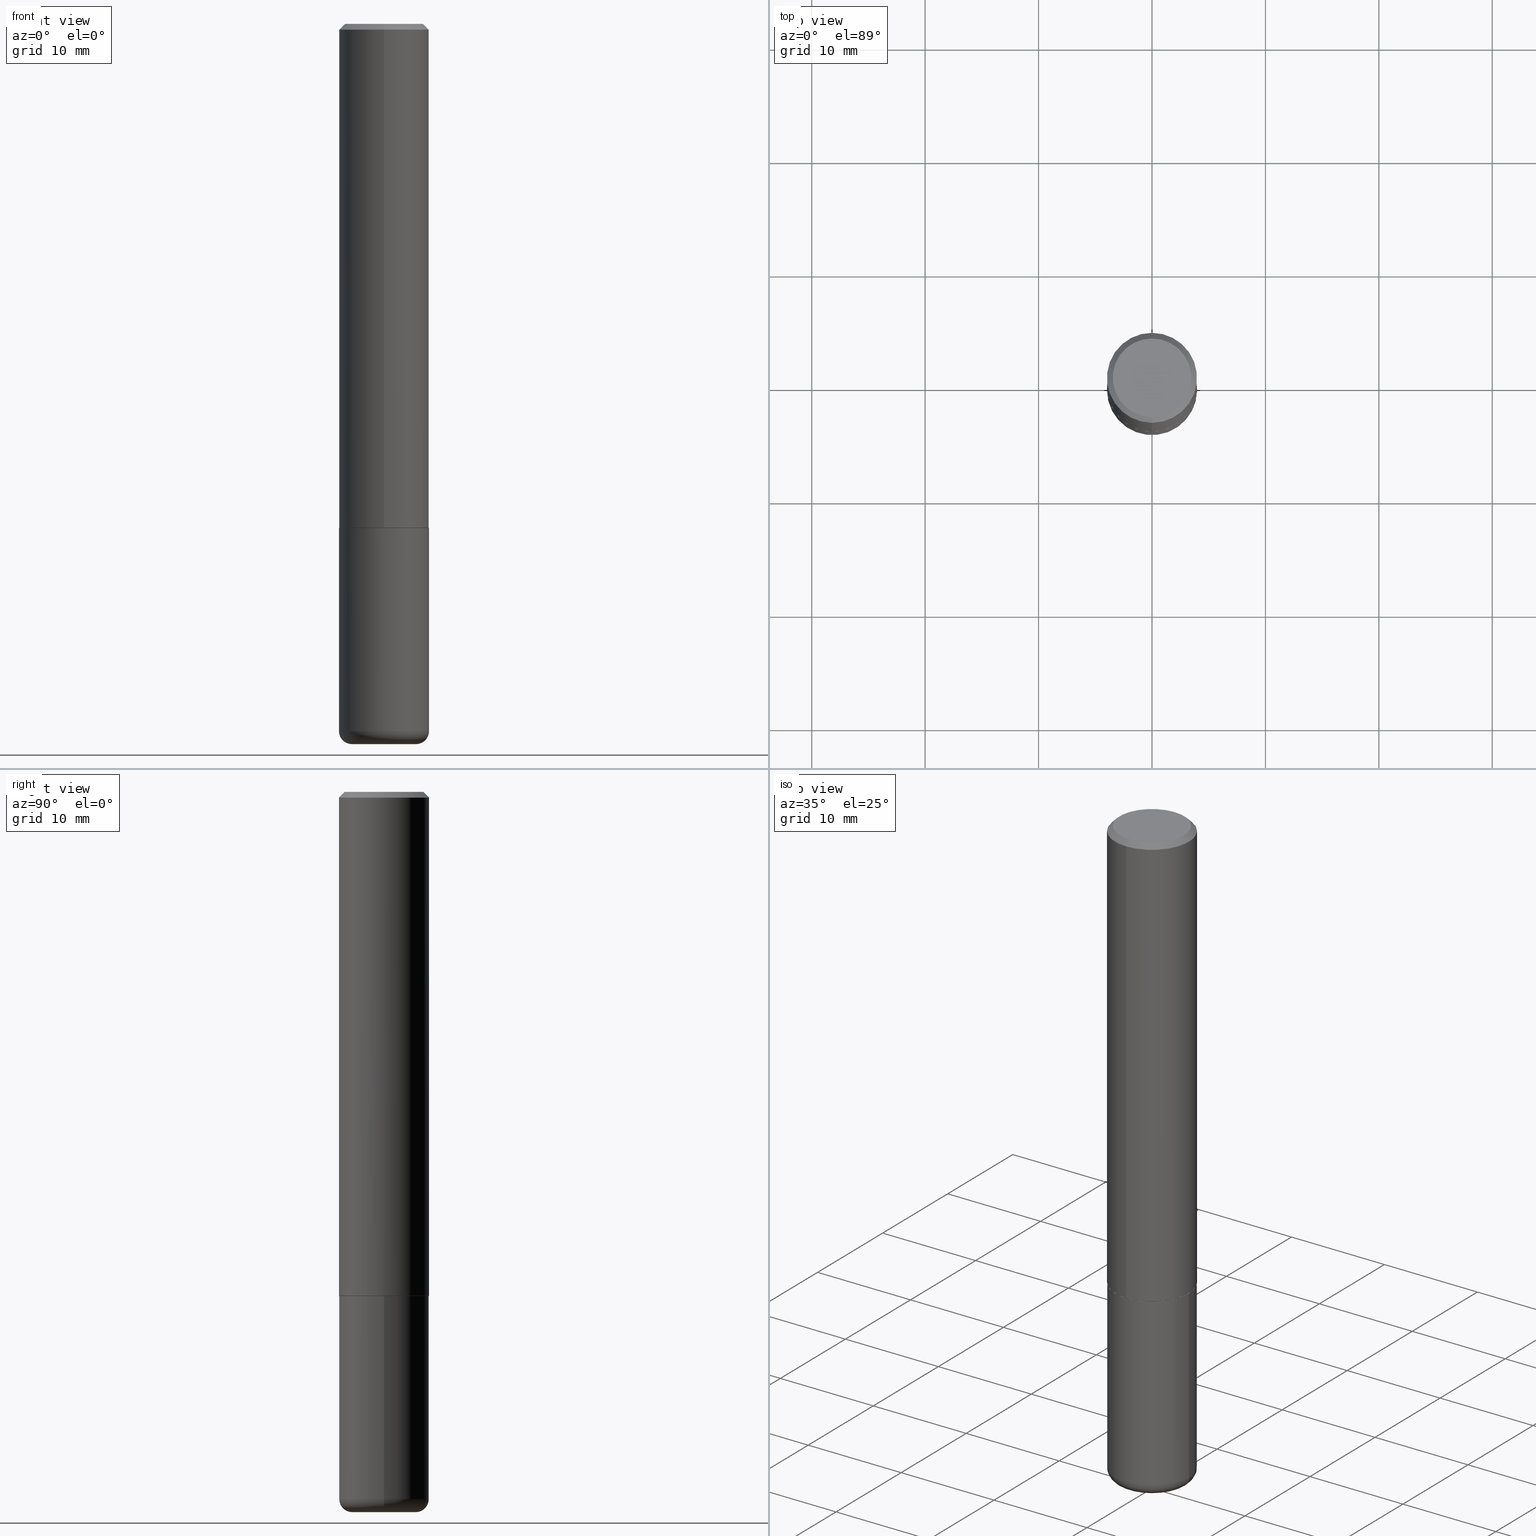
[diagram: canonical four-view strip — front | top / right | iso, engineering-drawing reading convention]
A machine part, canonical four-view strip (front | top / right | iso — engineering-drawing reading convention). The complete STEP part file that produces these views, byte-faithful:
ISO-10303-21;
HEADER;
FILE_DESCRIPTION (( 'STEP AP203' ),
    '1' );
FILE_NAME ('36108.STEP',
    '2024-03-01T15:39:34',
    ( '' ),
    ( '' ),
    'SwSTEP 2.0',
    'SolidWorks 2023',
    '' );
FILE_SCHEMA (( 'CONFIG_CONTROL_DESIGN' ));
ENDSEC;

DATA;
#1 = FACE_OUTER_BOUND ( 'NONE', #14, .T. ) ;
#2 = DIRECTION ( 'NONE',  ( -2.445468806185136597E-29, 3.491481338843145583E-15, 1.000000000000000000 ) ) ;
#3 = DIRECTION ( 'NONE',  ( -6.982962677686266711E-15, -1.000000000000000000, 3.496765431890256131E-15 ) ) ;
#4 = CIRCLE ( 'NONE', #55, 0.04499999999999996364 ) ;
#5 = VECTOR ( 'NONE', #362, 39.37007874015748143 ) ;
#6 = DIRECTION ( 'NONE',  ( -6.982962677686265922E-15, -1.000000000000000000, 3.519288880726909138E-15 ) ) ;
#7 = DIRECTION ( 'NONE',  ( -2.445468806185136597E-29, 3.491481338843145583E-15, 1.000000000000000000 ) ) ;
#8 = ORIENTED_EDGE ( 'NONE', *, *, #235, .F. ) ;
#9 = DIRECTION ( 'NONE',  ( 2.438088387897960049E-29, -3.491481338843145188E-15, -1.000000000000000000 ) ) ;
#10 = ORIENTED_EDGE ( 'NONE', *, *, #156, .T. ) ;
#11 = VECTOR ( 'NONE', #77, 39.37007874015748143 ) ;
#12 = CC_DESIGN_PERSON_AND_ORGANIZATION_ASSIGNMENT ( #115, #257, ( #283 ) ) ;
#13 = FACE_OUTER_BOUND ( 'NONE', #207, .T. ) ;
#14 = EDGE_LOOP ( 'NONE', ( #168, #80, #311, #250 ) ) ;
#15 = EDGE_CURVE ( 'NONE', #103, #220, #338, .T. ) ;
#16 = ORIENTED_EDGE ( 'NONE', *, *, #25, .F. ) ;
#17 = AXIS2_PLACEMENT_3D ( 'NONE', #245, #343, #253 ) ;
#18 = ORIENTED_EDGE ( 'NONE', *, *, #20, .F. ) ;
#19 = SECURITY_CLASSIFICATION_LEVEL ( 'unclassified' ) ;
#20 = EDGE_CURVE ( 'NONE', #103, #282, #24, .T. ) ;
#21 = AXIS2_PLACEMENT_3D ( 'NONE', #256, #320, #380 ) ;
#22 = VECTOR ( 'NONE', #366, 39.37007874015748143 ) ;
#23 = ORIENTED_EDGE ( 'NONE', *, *, #225, .T. ) ;
#24 = LINE ( 'NONE', #414, #325 ) ;
#25 = EDGE_CURVE ( 'NONE', #406, #47, #323, .T. ) ;
#26 = CARTESIAN_POINT ( 'NONE',  ( -1.051998109707860162E-45, 1.504285009843582967E-31, 4.305129712188530359E-17 ) ) ;
#27 = DATE_AND_TIME ( #199, #150 ) ;
#28 = DIRECTION ( 'NONE',  ( -2.445468806185136597E-29, 3.491481338843145583E-15, 1.000000000000000000 ) ) ;
#29 = CIRCLE ( 'NONE', #314, 0.04499999999999996364 ) ;
#30 = LINE ( 'NONE', #298, #41 ) ;
#31 = APPROVAL_ROLE ( '' ) ;
#32 = ADVANCED_FACE ( 'NONE', ( #44 ), #383, .T. ) ;
#33 = DIRECTION ( 'NONE',  ( -6.982962677686266711E-15, -1.000000000000000000, 3.494168841381722958E-15 ) ) ;
#34 = APPROVAL ( #88, 'UNSPECIFIED' ) ;
#35 = DIRECTION ( 'NONE',  ( -1.000000000000000000, 7.105427357600996337E-15, 0.000000000000000000 ) ) ;
#36 = ORIENTED_EDGE ( 'NONE', *, *, #175, .T. ) ;
#37 = CIRCLE ( 'NONE', #267, 0.1562500000000000000 ) ;
#38 = ORIENTED_EDGE ( 'NONE', *, *, #15, .T. ) ;
#39 = CARTESIAN_POINT ( 'NONE',  ( 6.003625919184510659E-29, -8.571586686859923311E-15, -2.455000000000000071 ) ) ;
#40 = AXIS2_PLACEMENT_3D ( 'NONE', #370, #118, #181 ) ;
#41 = VECTOR ( 'NONE', #367, 39.37007874015748143 ) ;
#42 = ADVANCED_FACE ( 'NONE', ( #230 ), #356, .T. ) ;
#43 = VERTEX_POINT ( 'NONE', #141 ) ;
#44 = FACE_OUTER_BOUND ( 'NONE', #313, .T. ) ;
#45 = PERSON_AND_ORGANIZATION_ROLE ( 'creator' ) ;
#46 = ORIENTED_EDGE ( 'NONE', *, *, #225, .F. ) ;
#47 = VERTEX_POINT ( 'NONE', #278 ) ;
#48 = PERSON_AND_ORGANIZATION_ROLE ( 'creator' ) ;
#49 = CIRCLE ( 'NONE', #418, 0.1562500000000000000 ) ;
#50 = EDGE_CURVE ( 'NONE', #282, #374, #376, .T. ) ;
#51 = APPROVAL_STATUS ( 'not_yet_approved' ) ;
#52 = CARTESIAN_POINT ( 'NONE',  ( 1.091087918388479765E-15, 0.1562499999999999722, -0.02000000000000057981 ) ) ;
#53 = LENGTH_MEASURE_WITH_UNIT ( LENGTH_MEASURE( 0.02539999999999999897 ), #287 );
#54 = EDGE_CURVE ( 'NONE', #220, #103, #98, .T. ) ;
#55 = AXIS2_PLACEMENT_3D ( 'NONE', #353, #237, #35 ) ;
#56 = AXIS2_PLACEMENT_3D ( 'NONE', #300, #61, #3 ) ;
#57 = VERTEX_POINT ( 'NONE', #52 ) ;
#58 = COORDINATED_UNIVERSAL_TIME_OFFSET ( 5, 0, .BEHIND. ) ;
#59 = DIRECTION ( 'NONE',  ( 6.982962677686266711E-15, 1.000000000000000000, -3.496765431890256131E-15 ) ) ;
#60 = ORIENTED_EDGE ( 'NONE', *, *, #160, .T. ) ;
#61 = DIRECTION ( 'NONE',  ( -2.443592133192829145E-29, 3.494168841381722958E-15, 1.000000000000000000 ) ) ;
#62 = DIRECTION ( 'NONE',  ( 2.443592133192829145E-29, -3.494168841381722958E-15, -1.000000000000000000 ) ) ;
#63 = DIRECTION ( 'NONE',  ( 1.000000000000000000, -6.982962677686273810E-15, 0.000000000000000000 ) ) ;
#64 = AXIS2_PLACEMENT_3D ( 'NONE', #303, #357, #296 ) ;
#65 = EDGE_CURVE ( 'NONE', #292, #57, #215, .T. ) ;
#66 = DIRECTION ( 'NONE',  ( -6.982962677686266711E-15, -1.000000000000000000, 3.491481338843145583E-15 ) ) ;
#67 = DIRECTION ( 'NONE',  ( -6.982962677686265922E-15, -1.000000000000000000, 3.494168841381722563E-15 ) ) ;
#68 = EDGE_CURVE ( 'NONE', #133, #47, #4, .T. ) ;
#69 = DIRECTION ( 'NONE',  ( -6.982962677686265922E-15, -1.000000000000000000, 3.494168841381722563E-15 ) ) ;
#70 = AXIS2_PLACEMENT_3D ( 'NONE', #361, #167, #67 ) ;
#71 = VECTOR ( 'NONE', #179, 39.37007874015748143 ) ;
#72 = CARTESIAN_POINT ( 'NONE',  ( 4.276286233087450864E-29, -6.114795472418015571E-15, -1.750000000000000222 ) ) ;
#73 = CARTESIAN_POINT ( 'NONE',  ( -1.003347832174086278E-15, -0.1362500000000000100, 5.191318017601450941E-16 ) ) ;
#74 = PRODUCT ( '36108', '36108', '', ( #411 ) ) ;
#75 = EDGE_LOOP ( 'NONE', ( #364, #173, #121, #46 ) ) ;
#76 = EDGE_LOOP ( 'NONE', ( #273, #246, #371, #354 ) ) ;
#77 = DIRECTION ( 'NONE',  ( -2.443592133192829145E-29, 3.494168841381722958E-15, 1.000000000000000000 ) ) ;
#78 = EDGE_CURVE ( 'NONE', #310, #209, #301, .T. ) ;
#79 = AXIS2_PLACEMENT_3D ( 'NONE', #329, #360, #97 ) ;
#80 = ORIENTED_EDGE ( 'NONE', *, *, #409, .T. ) ;
#81 = ORIENTED_EDGE ( 'NONE', *, *, #165, .T. ) ;
#82 = CALENDAR_DATE ( 2024, 1, 3 ) ;
#83 = ORIENTED_EDGE ( 'NONE', *, *, #65, .T. ) ;
#84 = APPROVAL_DATE_TIME ( #251, #299 ) ;
#85 = APPROVAL_DATE_TIME ( #285, #135 ) ;
#86 = PERSON_AND_ORGANIZATION ( #407, #348 ) ;
#87 = DIRECTION ( 'NONE',  ( -2.443592133192829145E-29, 3.494168841381722958E-15, 1.000000000000000000 ) ) ;
#88 = APPROVAL_STATUS ( 'not_yet_approved' ) ;
#89 = ADVANCED_FACE ( 'NONE', ( #363 ), #231, .T. ) ;
#90 = FACE_OUTER_BOUND ( 'NONE', #198, .T. ) ;
#91 = ORIENTED_EDGE ( 'NONE', *, *, #265, .F. ) ;
#92 = AXIS2_PLACEMENT_3D ( 'NONE', #197, #62, #59 ) ;
#93 = DIRECTION ( 'NONE',  ( -1.000000000000000000, 6.982962677686265922E-15, -4.876176775795935793E-29 ) ) ;
#94 = CC_DESIGN_SECURITY_CLASSIFICATION ( #283, ( #177 ) ) ;
#95 = DATE_TIME_ROLE ( 'classification_date' ) ;
#96 = LINE ( 'NONE', #332, #377 ) ;
#97 = DIRECTION ( 'NONE',  ( -6.982962677686265922E-15, -1.000000000000000000, 3.519288880726909138E-15 ) ) ;
#98 = CIRCLE ( 'NONE', #390, 0.1552499999999999991 ) ;
#99 = CARTESIAN_POINT ( 'NONE',  ( 0.1562500000000000000, -7.201180261363985422E-15, -1.750000000000000222 ) ) ;
#100 = ORIENTED_EDGE ( 'NONE', *, *, #147, .F. ) ;
#101 = CARTESIAN_POINT ( 'NONE',  ( -1.071952812151801412E-15, -0.1562500000000001110, -0.01999999999999948694 ) ) ;
#102 = DIRECTION ( 'NONE',  ( -2.445468806185136597E-29, 3.491481338843145583E-15, 1.000000000000000000 ) ) ;
#103 = VERTEX_POINT ( 'NONE', #158 ) ;
#104 = ORIENTED_EDGE ( 'NONE', *, *, #265, .T. ) ;
#105 = FACE_OUTER_BOUND ( 'NONE', #368, .T. ) ;
#106 = PLANE ( 'NONE',  #123 ) ;
#107 = ORIENTED_EDGE ( 'NONE', *, *, #286, .F. ) ;
#108 = DIRECTION ( 'NONE',  ( -2.445468806185136597E-29, 3.491481338843145583E-15, 1.000000000000000000 ) ) ;
#109 = VERTEX_POINT ( 'NONE', #205 ) ;
#110 = CC_DESIGN_PERSON_AND_ORGANIZATION_ASSIGNMENT ( #114, #45, ( #119 ) ) ;
#111 = DATE_TIME_ROLE ( 'creation_date' ) ;
#112 = EDGE_LOOP ( 'NONE', ( #412, #172, #396, #8 ) ) ;
#113 = PERSON_AND_ORGANIZATION ( #407, #348 ) ;
#114 = PERSON_AND_ORGANIZATION ( #407, #348 ) ;
#115 = PERSON_AND_ORGANIZATION ( #407, #348 ) ;
#116 = CIRCLE ( 'NONE', #378, 0.1112500000000000017 ) ;
#117 = CC_DESIGN_APPROVAL ( #34, ( #283 ) ) ;
#118 = DIRECTION ( 'NONE',  ( -2.443592133192829145E-29, 3.494168841381722958E-15, 1.000000000000000000 ) ) ;
#119 = PRODUCT_DEFINITION ( 'UNKNOWN', '', #177, #293 ) ;
#120 = CALENDAR_DATE ( 2024, 1, 3 ) ;
#121 = ORIENTED_EDGE ( 'NONE', *, *, #315, .T. ) ;
#122 = CARTESIAN_POINT ( 'NONE',  ( 6.003625919184510659E-29, -8.571586686859923311E-15, -2.455000000000000071 ) ) ;
#123 = AXIS2_PLACEMENT_3D ( 'NONE', #72, #394, #211 ) ;
#124 = CARTESIAN_POINT ( 'NONE',  ( 6.113672015462842613E-29, -8.728703347107864943E-15, -2.500000000000000000 ) ) ;
#125 = ADVANCED_FACE ( 'NONE', ( #388 ), #391, .T. ) ;
#126 = CARTESIAN_POINT ( 'NONE',  ( 6.113672015462842613E-29, -8.728703347107864943E-15, -2.500000000000000000 ) ) ;
#127 = CARTESIAN_POINT ( 'NONE',  ( -1.071952812151801412E-15, -0.1562500000000001110, -0.01999999999999948694 ) ) ;
#128 = DIRECTION ( 'NONE',  ( -2.443592133192829145E-29, 3.494168841381722958E-15, 1.000000000000000000 ) ) ;
#129 = LINE ( 'NONE', #200, #224 ) ;
#130 = AXIS2_PLACEMENT_3D ( 'NONE', #241, #9, #136 ) ;
#131 = ADVANCED_FACE ( 'NONE', ( #417 ), #387, .F. ) ;
#132 = LOCAL_TIME ( 10, 39, 34.00000000000000000, #373 ) ;
#133 = VERTEX_POINT ( 'NONE', #234 ) ;
#134 = DIRECTION ( 'NONE',  ( 1.000000000000000000, -6.982962677686269077E-15, 0.000000000000000000 ) ) ;
#135 = APPROVAL ( #51, 'UNSPECIFIED' ) ;
#136 = DIRECTION ( 'NONE',  ( -1.000000000000000000, 6.982962677686265922E-15, -4.876176775795935793E-29 ) ) ;
#137 = AXIS2_PLACEMENT_3D ( 'NONE', #122, #108, #341 ) ;
#138 = AXIS2_PLACEMENT_3D ( 'NONE', #26, #386, #166 ) ;
#139 = CARTESIAN_POINT ( 'NONE',  ( -0.1562500000000000000, 1.110223024625156540E-15, -7.685836078523291160E-30 ) ) ;
#140 = ADVANCED_FACE ( 'NONE', ( #1 ), #322, .T. ) ;
#141 = CARTESIAN_POINT ( 'NONE',  ( 1.021258291611616861E-15, 0.1362500000000000100, -4.330292075163745362E-16 ) ) ;
#142 = DIRECTION ( 'NONE',  ( -2.445468806185136597E-29, 3.491481338843145583E-15, 1.000000000000000000 ) ) ;
#143 = ORIENTED_EDGE ( 'NONE', *, *, #389, .T. ) ;
#144 = ORIENTED_EDGE ( 'NONE', *, *, #409, .F. ) ;
#145 = APPLICATION_PROTOCOL_DEFINITION ( 'international standard', 'config_control_design', 1994, #352 ) ;
#146 = EDGE_LOOP ( 'NONE', ( #36, #223 ) ) ;
#147 = EDGE_CURVE ( 'NONE', #109, #406, #29, .T. ) ;
#148 = AXIS2_PLACEMENT_3D ( 'NONE', #270, #2, #264 ) ;
#149 = AXIS2_PLACEMENT_3D ( 'NONE', #152, #351, #226 ) ;
#150 = LOCAL_TIME ( 10, 39, 34.00000000000000000, #58 ) ;
#151 = ORIENTED_EDGE ( 'NONE', *, *, #50, .F. ) ;
#152 = CARTESIAN_POINT ( 'NONE',  ( 4.887184266385666173E-31, -6.988337682763458192E-17, -0.02000000000000003511 ) ) ;
#153 = FACE_OUTER_BOUND ( 'NONE', #228, .T. ) ;
#154 = DIRECTION ( 'NONE',  ( -2.445468806185136597E-29, 3.491481338843145583E-15, 1.000000000000000000 ) ) ;
#155 = CARTESIAN_POINT ( 'NONE',  ( 0.1562500000000000000, -9.662674605248401695E-15, -2.455000000000000071 ) ) ;
#156 = EDGE_CURVE ( 'NONE', #133, #109, #176, .T. ) ;
#157 = ORIENTED_EDGE ( 'NONE', *, *, #156, .F. ) ;
#158 = CARTESIAN_POINT ( 'NONE',  ( 1.106670310946399226E-15, 0.1552499999999938929, -1.750000000000000666 ) ) ;
#159 = COORDINATED_UNIVERSAL_TIME_OFFSET ( 5, 0, .BEHIND. ) ;
#160 = EDGE_CURVE ( 'NONE', #43, #57, #96, .T. ) ;
#161 = APPROVAL_PERSON_ORGANIZATION ( #375, #135, #408 ) ;
#162 = DIRECTION ( 'NONE',  ( -2.445468806185136877E-29, 3.491481338843145188E-15, 1.000000000000000000 ) ) ;
#163 = CC_DESIGN_DATE_AND_TIME_ASSIGNMENT ( #405, #111, ( #119 ) ) ;
#164 = CARTESIAN_POINT ( 'NONE',  ( -1.084104955710750166E-15, -0.1552500000000061053, -1.749999999999999556 ) ) ;
#165 = EDGE_CURVE ( 'NONE', #109, #133, #116, .T. ) ;
#166 = DIRECTION ( 'NONE',  ( -6.982962677686266711E-15, -1.000000000000000000, 3.494168841381722958E-15 ) ) ;
#167 = DIRECTION ( 'NONE',  ( -2.443592133192829145E-29, 3.494168841381722958E-15, 1.000000000000000000 ) ) ;
#168 = ORIENTED_EDGE ( 'NONE', *, *, #365, .F. ) ;
#169 = AXIS2_PLACEMENT_3D ( 'NONE', #402, #206, #6 ) ;
#170 = ADVANCED_BREP_SHAPE_REPRESENTATION ( '36108', ( #195, #328, #242 ), #188 ) ;
#171 = CARTESIAN_POINT ( 'NONE',  ( 1.110223024625157329E-15, 0.1562500000000001388, -5.459638814658946559E-16 ) ) ;
#172 = ORIENTED_EDGE ( 'NONE', *, *, #365, .T. ) ;
#173 = ORIENTED_EDGE ( 'NONE', *, *, #50, .T. ) ;
#174 = DIRECTION ( 'NONE',  ( -2.445468806185136597E-29, 3.491481338843145583E-15, 1.000000000000000000 ) ) ;
#175 = EDGE_CURVE ( 'NONE', #43, #277, #202, .T. ) ;
#176 = CIRCLE ( 'NONE', #208, 0.1112500000000000017 ) ;
#177 = PRODUCT_DEFINITION_FORMATION_WITH_SPECIFIED_SOURCE ( 'ANY', '', #74, .NOT_KNOWN. ) ;
#178 = CARTESIAN_POINT ( 'NONE',  ( -1.091087918388479962E-15, -0.1562500000000001388, 5.459638814658946559E-16 ) ) ;
#179 = DIRECTION ( 'NONE',  ( -2.443592133192829145E-29, 3.494168841381722958E-15, 1.000000000000000000 ) ) ;
#180 = ORIENTED_EDGE ( 'NONE', *, *, #54, .T. ) ;
#181 = DIRECTION ( 'NONE',  ( -6.982962677686265922E-15, -1.000000000000000000, 3.496765431890251792E-15 ) ) ;
#182 = DIRECTION ( 'NONE',  ( 1.000000000000000000, -6.982962677686269077E-15, 0.000000000000000000 ) ) ;
#183 = ORIENTED_EDGE ( 'NONE', *, *, #175, .F. ) ;
#184 = COORDINATED_UNIVERSAL_TIME_OFFSET ( 5, 0, .BEHIND. ) ;
#185 = ORIENTED_EDGE ( 'NONE', *, *, #219, .F. ) ;
#186 = CC_DESIGN_DATE_AND_TIME_ASSIGNMENT ( #27, #95, ( #283 ) ) ;
#187 = PERSON_AND_ORGANIZATION ( #407, #348 ) ;
#188 =( GEOMETRIC_REPRESENTATION_CONTEXT ( 3 ) GLOBAL_UNCERTAINTY_ASSIGNED_CONTEXT ( ( #302 ) ) GLOBAL_UNIT_ASSIGNED_CONTEXT ( ( #189, #382, #284 ) ) REPRESENTATION_CONTEXT ( 'NONE', 'WORKASPACE' ) );
#189 =( CONVERSION_BASED_UNIT ( 'INCH', #53 ) LENGTH_UNIT ( ) NAMED_UNIT ( #416 ) );
#190 = DIRECTION ( 'NONE',  ( -2.443592133192829145E-29, 3.494168841381722958E-15, 1.000000000000000000 ) ) ;
#191 = CARTESIAN_POINT ( 'NONE',  ( 0.000000000000000000, 0.000000000000000000, 0.000000000000000000 ) ) ;
#192 = EDGE_CURVE ( 'NONE', #209, #310, #49, .T. ) ;
#193 = ORIENTED_EDGE ( 'NONE', *, *, #54, .F. ) ;
#194 = APPROVAL_DATE_TIME ( #262, #34 ) ;
#195 = MANIFOLD_SOLID_BREP ( 'Body-Move/Copy2[1]', #347 ) ;
#196 = AXIS2_PLACEMENT_3D ( 'NONE', #227, #190, #317 ) ;
#197 = CARTESIAN_POINT ( 'NONE',  ( 4.887184266385666173E-31, -6.988337682763458192E-17, -0.02000000000000003511 ) ) ;
#198 = EDGE_LOOP ( 'NONE', ( #185, #143, #83, #393 ) ) ;
#199 = CALENDAR_DATE ( 2024, 1, 3 ) ;
#200 = CARTESIAN_POINT ( 'NONE',  ( 0.1562500000000000000, -1.091087918388479174E-15, 7.619026212181150377E-30 ) ) ;
#201 = AXIS2_PLACEMENT_3D ( 'NONE', #239, #142, #279 ) ;
#202 = CIRCLE ( 'NONE', #334, 0.1362500000000000100 ) ;
#203 = DIRECTION ( 'NONE',  ( 1.000000000000000000, -6.982962677686266711E-15, 4.876176775795936353E-29 ) ) ;
#204 = DIRECTION ( 'NONE',  ( 1.000000000000000000, -6.982962677686269077E-15, 0.000000000000000000 ) ) ;
#205 = CARTESIAN_POINT ( 'NONE',  ( 0.1112500000000000017, -9.505557945000461641E-15, -2.500000000000000000 ) ) ;
#206 = DIRECTION ( 'NONE',  ( -2.443592133192829145E-29, 3.494168841381722958E-15, 1.000000000000000000 ) ) ;
#207 = EDGE_LOOP ( 'NONE', ( #18, #38, #104, #151 ) ) ;
#208 = AXIS2_PLACEMENT_3D ( 'NONE', #126, #327, #261 ) ;
#209 = VERTEX_POINT ( 'NONE', #99 ) ;
#210 = ADVANCED_FACE ( 'NONE', ( #395 ), #240, .T. ) ;
#211 = DIRECTION ( 'NONE',  ( -6.982962677686265922E-15, -1.000000000000000000, 3.494168841381722958E-15 ) ) ;
#212 = ORIENTED_EDGE ( 'NONE', *, *, #15, .F. ) ;
#213 = CARTESIAN_POINT ( 'NONE',  ( -1.091087918388437758E-15, -0.1562500000000063283, -1.748999999999999666 ) ) ;
#214 = ORIENTED_EDGE ( 'NONE', *, *, #68, .F. ) ;
#215 = CIRCLE ( 'NONE', #196, 0.1562500000000000278 ) ;
#216 = AXIS2_PLACEMENT_3D ( 'NONE', #39, #174, #306 ) ;
#217 = DIRECTION ( 'NONE',  ( 5.024295867788404755E-15, 0.7071067811865981989, 0.7071067811864968355 ) ) ;
#218 = DIRECTION ( 'NONE',  ( 1.000000000000000000, 0.000000000000000000, 0.000000000000000000 ) ) ;
#219 = EDGE_CURVE ( 'NONE', #277, #43, #410, .T. ) ;
#220 = VERTEX_POINT ( 'NONE', #164 ) ;
#221 = CARTESIAN_POINT ( 'NONE',  ( 4.276286233087450864E-29, -6.114795472418015571E-15, -1.750000000000000222 ) ) ;
#222 = PRODUCT_RELATED_PRODUCT_CATEGORY ( 'detail', '', ( #74 ) ) ;
#223 = ORIENTED_EDGE ( 'NONE', *, *, #219, .T. ) ;
#224 = VECTOR ( 'NONE', #162, 39.37007874015748143 ) ;
#225 = EDGE_CURVE ( 'NONE', #57, #292, #247, .T. ) ;
#226 = DIRECTION ( 'NONE',  ( 6.982962677686266711E-15, 1.000000000000000000, -3.496765431890256131E-15 ) ) ;
#227 = CARTESIAN_POINT ( 'NONE',  ( 4.887184266385666173E-31, -6.988337682763458192E-17, -0.02000000000000003511 ) ) ;
#228 = EDGE_LOOP ( 'NONE', ( #344, #183, #60, #23 ) ) ;
#229 = CONICAL_SURFACE ( 'NONE', #149, 0.1562500000000000278, 0.7853981633974471688 ) ;
#230 = FACE_OUTER_BOUND ( 'NONE', #112, .T. ) ;
#231 = CYLINDRICAL_SURFACE ( 'NONE', #70, 0.1562500000000001388 ) ;
#232 = DIRECTION ( 'NONE',  ( 4.937700262164541731E-15, 0.7071067811865442421, -0.7071067811865507924 ) ) ;
#233 = LOCAL_TIME ( 10, 39, 34.00000000000000000, #281 ) ;
#234 = CARTESIAN_POINT ( 'NONE',  ( -0.1112500000000000017, -7.699794107904759087E-15, -2.500000000000000000 ) ) ;
#235 = EDGE_CURVE ( 'NONE', #406, #209, #129, .T. ) ;
#236 = EDGE_LOOP ( 'NONE', ( #340, #248 ) ) ;
#237 = DIRECTION ( 'NONE',  ( 7.105427357601001859E-15, 1.000000000000000000, -3.491481338843145583E-15 ) ) ;
#238 = ORIENTED_EDGE ( 'NONE', *, *, #147, .T. ) ;
#239 = CARTESIAN_POINT ( 'NONE',  ( 6.003625919184510659E-29, -8.571586686859923311E-15, -2.455000000000000071 ) ) ;
#240 = CYLINDRICAL_SURFACE ( 'NONE', #319, 0.1562500000000001388 ) ;
#241 = CARTESIAN_POINT ( 'NONE',  ( 4.279570410823989044E-29, -6.110092342975505460E-15, -1.750000000000000222 ) ) ;
#242 = AXIS2_PLACEMENT_3D ( 'NONE', #191, #379, #218 ) ;
#243 = ORIENTED_EDGE ( 'NONE', *, *, #165, .F. ) ;
#244 = CARTESIAN_POINT ( 'NONE',  ( 0.000000000000000000, 0.000000000000000000, 0.000000000000000000 ) ) ;
#245 = CARTESIAN_POINT ( 'NONE',  ( 4.273842640954258805E-29, -6.111301303576634099E-15, -1.749000000000000110 ) ) ;
#246 = ORIENTED_EDGE ( 'NONE', *, *, #272, .T. ) ;
#247 = CIRCLE ( 'NONE', #56, 0.1562500000000000278 ) ;
#248 = ORIENTED_EDGE ( 'NONE', *, *, #78, .T. ) ;
#249 = APPROVAL_STATUS ( 'not_yet_approved' ) ;
#250 = ORIENTED_EDGE ( 'NONE', *, *, #78, .F. ) ;
#251 = DATE_AND_TIME ( #82, #132 ) ;
#252 = PERSON_AND_ORGANIZATION_ROLE ( 'design_supplier' ) ;
#253 = DIRECTION ( 'NONE',  ( -6.982962677686265922E-15, -1.000000000000000000, 3.496765431890251792E-15 ) ) ;
#254 = DIRECTION ( 'NONE',  ( 1.000000000000000000, -6.982962677686266711E-15, 4.876176775795936353E-29 ) ) ;
#255 = CARTESIAN_POINT ( 'NONE',  ( 6.003625919184510659E-29, -8.571586686859923311E-15, -2.455000000000000071 ) ) ;
#256 = CARTESIAN_POINT ( 'NONE',  ( 4.276286233087450864E-29, -6.114795472418015571E-15, -1.750000000000000222 ) ) ;
#257 = PERSON_AND_ORGANIZATION_ROLE ( 'classification_officer' ) ;
#258 = TOROIDAL_SURFACE ( 'NONE', #216, 0.1112500000000000017, 0.04499999999999996364 ) ;
#259 = APPROVAL_PERSON_ORGANIZATION ( #295, #34, #31 ) ;
#260 = CARTESIAN_POINT ( 'NONE',  ( -1.051998109707860162E-45, 1.504285009843582967E-31, 4.305129712188530359E-17 ) ) ;
#261 = DIRECTION ( 'NONE',  ( 1.000000000000000000, -6.982962677686269077E-15, 0.000000000000000000 ) ) ;
#262 = DATE_AND_TIME ( #291, #308 ) ;
#263 = FACE_OUTER_BOUND ( 'NONE', #236, .T. ) ;
#264 = DIRECTION ( 'NONE',  ( 1.000000000000000000, -6.982962677686269077E-15, 0.000000000000000000 ) ) ;
#265 = EDGE_CURVE ( 'NONE', #220, #374, #30, .T. ) ;
#266 = AXIS2_PLACEMENT_3D ( 'NONE', #288, #404, #93 ) ;
#267 = AXIS2_PLACEMENT_3D ( 'NONE', #255, #349, #182 ) ;
#268 = CARTESIAN_POINT ( 'NONE',  ( 0.000000000000000000, 0.000000000000000000, 0.000000000000000000 ) ) ;
#269 = LINE ( 'NONE', #101, #5 ) ;
#270 = CARTESIAN_POINT ( 'NONE',  ( 4.279570410823989044E-29, -6.110092342975505460E-15, -1.750000000000000222 ) ) ;
#271 = ORIENTED_EDGE ( 'NONE', *, *, #68, .T. ) ;
#272 = EDGE_CURVE ( 'NONE', #282, #57, #305, .T. ) ;
#273 = ORIENTED_EDGE ( 'NONE', *, *, #286, .T. ) ;
#274 = ORIENTED_EDGE ( 'NONE', *, *, #20, .T. ) ;
#275 = CARTESIAN_POINT ( 'NONE',  ( -0.1562500000000000000, -6.230616490292557845E-15, -1.750000000000000222 ) ) ;
#276 = CIRCLE ( 'NONE', #17, 0.1562500000000002220 ) ;
#277 = VERTEX_POINT ( 'NONE', #73 ) ;
#278 = CARTESIAN_POINT ( 'NONE',  ( -0.1562500000000000000, -7.461363662234766770E-15, -2.455000000000000071 ) ) ;
#279 = DIRECTION ( 'NONE',  ( 1.000000000000000000, -6.982962677686270655E-15, 4.883557194083114022E-29 ) ) ;
#280 = EDGE_LOOP ( 'NONE', ( #180, #274, #107, #91 ) ) ;
#281 = COORDINATED_UNIVERSAL_TIME_OFFSET ( 5, 0, .BEHIND. ) ;
#282 = VERTEX_POINT ( 'NONE', #307 ) ;
#283 = SECURITY_CLASSIFICATION ( '', '', #19 ) ;
#284 =( NAMED_UNIT ( * ) SI_UNIT ( $, .STERADIAN. ) SOLID_ANGLE_UNIT ( ) );
#285 = DATE_AND_TIME ( #312, #398 ) ;
#286 = EDGE_CURVE ( 'NONE', #374, #282, #276, .T. ) ;
#287 =( LENGTH_UNIT ( ) NAMED_UNIT ( * ) SI_UNIT ( $, .METRE. ) );
#288 = CARTESIAN_POINT ( 'NONE',  ( 6.113672015462842613E-29, -8.728703347107864943E-15, -2.500000000000000000 ) ) ;
#289 = AXIS2_PLACEMENT_3D ( 'NONE', #244, #154, #254 ) ;
#290 = ADVANCED_FACE ( 'NONE', ( #90 ), #339, .T. ) ;
#291 = CALENDAR_DATE ( 2024, 1, 3 ) ;
#292 = VERTEX_POINT ( 'NONE', #127 ) ;
#293 = DESIGN_CONTEXT ( 'detailed design', #352, 'design' ) ;
#294 = DIRECTION ( 'NONE',  ( -2.443592133192829145E-29, 3.494168841381722958E-15, 1.000000000000000000 ) ) ;
#295 = PERSON_AND_ORGANIZATION ( #407, #348 ) ;
#296 = DIRECTION ( 'NONE',  ( 6.982962677686265922E-15, 1.000000000000000000, -3.494168841381722958E-15 ) ) ;
#297 = ADVANCED_FACE ( 'NONE', ( #263 ), #400, .F. ) ;
#298 = CARTESIAN_POINT ( 'NONE',  ( -1.084104955710750166E-15, -0.1552500000000061053, -1.749999999999999556 ) ) ;
#299 = APPROVAL ( #249, 'UNSPECIFIED' ) ;
#300 = CARTESIAN_POINT ( 'NONE',  ( 4.887184266385666173E-31, -6.988337682763458192E-17, -0.02000000000000003511 ) ) ;
#301 = CIRCLE ( 'NONE', #148, 0.1562500000000000000 ) ;
#302 = UNCERTAINTY_MEASURE_WITH_UNIT (LENGTH_MEASURE( 1.000000000000000082E-05 ), #189, 'distance_accuracy_value', 'NONE');
#303 = CARTESIAN_POINT ( 'NONE',  ( 9.514286648347539576E-16, 0.1362500000000000100, -4.545548560773172373E-16 ) ) ;
#304 = APPLICATION_CONTEXT ( 'configuration controlled 3d designs of mechanical parts and assemblies' ) ;
#305 = LINE ( 'NONE', #171, #71 ) ;
#306 = DIRECTION ( 'NONE',  ( 1.000000000000000000, -6.982962677686270655E-15, 4.883557194083114022E-29 ) ) ;
#307 = CARTESIAN_POINT ( 'NONE',  ( 1.110223024625179220E-15, 0.1562499999999940881, -1.749000000000000554 ) ) ;
#308 = LOCAL_TIME ( 10, 39, 34.00000000000000000, #159 ) ;
#309 = CC_DESIGN_PERSON_AND_ORGANIZATION_ASSIGNMENT ( #86, #318, ( #74 ) ) ;
#310 = VERTEX_POINT ( 'NONE', #275 ) ;
#311 = ORIENTED_EDGE ( 'NONE', *, *, #235, .T. ) ;
#312 = CALENDAR_DATE ( 2024, 1, 3 ) ;
#313 = EDGE_LOOP ( 'NONE', ( #243, #157 ) ) ;
#314 = AXIS2_PLACEMENT_3D ( 'NONE', #392, #66, #63 ) ;
#315 = EDGE_CURVE ( 'NONE', #374, #292, #397, .T. ) ;
#316 = APPROVAL_ROLE ( '' ) ;
#317 = DIRECTION ( 'NONE',  ( -6.982962677686266711E-15, -1.000000000000000000, 3.496765431890256131E-15 ) ) ;
#318 = PERSON_AND_ORGANIZATION_ROLE ( 'design_owner' ) ;
#319 = AXIS2_PLACEMENT_3D ( 'NONE', #358, #294, #69 ) ;
#320 = DIRECTION ( 'NONE',  ( -2.443592133192829145E-29, 3.494168841381722958E-15, 1.000000000000000000 ) ) ;
#321 = CARTESIAN_POINT ( 'NONE',  ( 4.279570410823989044E-29, -6.110092342975505460E-15, -1.750000000000000222 ) ) ;
#322 = CYLINDRICAL_SURFACE ( 'NONE', #384, 0.1562500000000000000 ) ;
#323 = CIRCLE ( 'NONE', #137, 0.1562500000000000000 ) ;
#324 = ADVANCED_FACE ( 'NONE', ( #105 ), #106, .F. ) ;
#325 = VECTOR ( 'NONE', #217, 39.37007874015748143 ) ;
#326 = CC_DESIGN_APPROVAL ( #135, ( #119 ) ) ;
#327 = DIRECTION ( 'NONE',  ( -2.445468806185136597E-29, 3.491481338843145583E-15, 1.000000000000000000 ) ) ;
#328 = MANIFOLD_SOLID_BREP ( 'Body-Move/Copy2[2]', #333 ) ;
#329 = CARTESIAN_POINT ( 'NONE',  ( 4.276286233087450864E-29, -6.114795472418015571E-15, -1.750000000000000222 ) ) ;
#330 = FACE_OUTER_BOUND ( 'NONE', #345, .T. ) ;
#331 = ADVANCED_FACE ( 'NONE', ( #330 ), #258, .T. ) ;
#332 = CARTESIAN_POINT ( 'NONE',  ( 1.091087918388479765E-15, 0.1562499999999999722, -0.02000000000000057981 ) ) ;
#333 = CLOSED_SHELL ( 'NONE', ( #125, #210, #290, #415, #89, #385, #324, #131 ) ) ;
#334 = AXIS2_PLACEMENT_3D ( 'NONE', #260, #128, #33 ) ;
#335 = LINE ( 'NONE', #139, #22 ) ;
#336 = PRODUCT_DEFINITION_SHAPE ( 'NONE', 'NONE',  #119 ) ;
#337 = FACE_OUTER_BOUND ( 'NONE', #403, .T. ) ;
#338 = CIRCLE ( 'NONE', #21, 0.1552499999999999991 ) ;
#339 = CONICAL_SURFACE ( 'NONE', #92, 0.1562500000000000278, 0.7853981633974471688 ) ;
#340 = ORIENTED_EDGE ( 'NONE', *, *, #192, .T. ) ;
#341 = DIRECTION ( 'NONE',  ( 1.000000000000000000, -6.982962677686269077E-15, 0.000000000000000000 ) ) ;
#342 = APPLICATION_PROTOCOL_DEFINITION ( 'international standard', 'config_control_design', 1994, #304 ) ;
#343 = DIRECTION ( 'NONE',  ( -2.443592133192829145E-29, 3.494168841381722958E-15, 1.000000000000000000 ) ) ;
#344 = ORIENTED_EDGE ( 'NONE', *, *, #389, .F. ) ;
#345 = EDGE_LOOP ( 'NONE', ( #214, #10, #238, #144 ) ) ;
#346 = PERSON_AND_ORGANIZATION ( #407, #348 ) ;
#347 = CLOSED_SHELL ( 'NONE', ( #42, #381, #297, #140, #331, #32 ) ) ;
#348 = ORGANIZATION ( 'UNSPECIFIED', 'UNSPECIFIED', '' ) ;
#349 = DIRECTION ( 'NONE',  ( -2.445468806185136597E-29, 3.491481338843145583E-15, 1.000000000000000000 ) ) ;
#350 = DIRECTION ( 'NONE',  ( -6.982962677686265922E-15, -1.000000000000000000, 3.519288880726909138E-15 ) ) ;
#351 = DIRECTION ( 'NONE',  ( 2.443592133192829145E-29, -3.494168841381722958E-15, -1.000000000000000000 ) ) ;
#352 = APPLICATION_CONTEXT ( 'configuration controlled 3d designs of mechanical parts and assemblies' ) ;
#353 = CARTESIAN_POINT ( 'NONE',  ( -0.1112500000000000017, -7.781107893326811349E-15, -2.455000000000000071 ) ) ;
#354 = ORIENTED_EDGE ( 'NONE', *, *, #315, .F. ) ;
#355 = CONICAL_SURFACE ( 'NONE', #169, 0.1552499999999999991, 0.7853981633975165577 ) ;
#356 = CYLINDRICAL_SURFACE ( 'NONE', #289, 0.1562500000000000000 ) ;
#357 = DIRECTION ( 'NONE',  ( 2.443592133192828865E-29, -3.494168841381722958E-15, -1.000000000000000000 ) ) ;
#358 = CARTESIAN_POINT ( 'NONE',  ( 0.000000000000000000, 0.000000000000000000, 0.000000000000000000 ) ) ;
#359 = TOROIDAL_SURFACE ( 'NONE', #201, 0.1112500000000000017, 0.04499999999999996364 ) ;
#360 = DIRECTION ( 'NONE',  ( -2.443592133192829145E-29, 3.494168841381722958E-15, 1.000000000000000000 ) ) ;
#361 = CARTESIAN_POINT ( 'NONE',  ( 0.000000000000000000, 0.000000000000000000, 0.000000000000000000 ) ) ;
#362 = DIRECTION ( 'NONE',  ( -4.851104656540957964E-15, -0.7071067811865491270, -0.7071067811865459074 ) ) ;
#363 = FACE_OUTER_BOUND ( 'NONE', #75, .T. ) ;
#364 = ORIENTED_EDGE ( 'NONE', *, *, #272, .F. ) ;
#365 = EDGE_CURVE ( 'NONE', #47, #310, #335, .T. ) ;
#366 = DIRECTION ( 'NONE',  ( -2.445468806185136877E-29, 3.491481338843145188E-15, 1.000000000000000000 ) ) ;
#367 = DIRECTION ( 'NONE',  ( -4.937700262164884886E-15, -0.7071067811865933139, 0.7071067811865017205 ) ) ;
#368 = EDGE_LOOP ( 'NONE', ( #193, #212 ) ) ;
#369 = CC_DESIGN_PERSON_AND_ORGANIZATION_ASSIGNMENT ( #346, #48, ( #177 ) ) ;
#370 = CARTESIAN_POINT ( 'NONE',  ( 4.273842640954258805E-29, -6.111301303576634099E-15, -1.749000000000000110 ) ) ;
#371 = ORIENTED_EDGE ( 'NONE', *, *, #65, .F. ) ;
#372 = CC_DESIGN_APPROVAL ( #299, ( #177 ) ) ;
#373 = COORDINATED_UNIVERSAL_TIME_OFFSET ( 5, 0, .BEHIND. ) ;
#374 = VERTEX_POINT ( 'NONE', #213 ) ;
#375 = PERSON_AND_ORGANIZATION ( #407, #348 ) ;
#376 = CIRCLE ( 'NONE', #40, 0.1562500000000002220 ) ;
#377 = VECTOR ( 'NONE', #232, 39.37007874015748143 ) ;
#378 = AXIS2_PLACEMENT_3D ( 'NONE', #124, #102, #204 ) ;
#379 = DIRECTION ( 'NONE',  ( 0.000000000000000000, 0.000000000000000000, 1.000000000000000000 ) ) ;
#380 = DIRECTION ( 'NONE',  ( -6.982962677686265922E-15, -1.000000000000000000, 3.519288880726909138E-15 ) ) ;
#381 = ADVANCED_FACE ( 'NONE', ( #337 ), #359, .T. ) ;
#382 =( NAMED_UNIT ( * ) PLANE_ANGLE_UNIT ( ) SI_UNIT ( $, .RADIAN. ) );
#383 = PLANE ( 'NONE',  #266 ) ;
#384 = AXIS2_PLACEMENT_3D ( 'NONE', #268, #28, #203 ) ;
#385 = ADVANCED_FACE ( 'NONE', ( #13 ), #355, .T. ) ;
#386 = DIRECTION ( 'NONE',  ( -2.443592133192829145E-29, 3.494168841381722958E-15, 1.000000000000000000 ) ) ;
#387 = PLANE ( 'NONE',  #64 ) ;
#388 = FACE_OUTER_BOUND ( 'NONE', #280, .T. ) ;
#389 = EDGE_CURVE ( 'NONE', #277, #292, #269, .T. ) ;
#390 = AXIS2_PLACEMENT_3D ( 'NONE', #221, #87, #350 ) ;
#391 = CONICAL_SURFACE ( 'NONE', #79, 0.1552499999999999991, 0.7853981633975165577 ) ;
#392 = CARTESIAN_POINT ( 'NONE',  ( 0.1112500000000000017, -9.348441284752520009E-15, -2.455000000000000071 ) ) ;
#393 = ORIENTED_EDGE ( 'NONE', *, *, #160, .F. ) ;
#394 = DIRECTION ( 'NONE',  ( -2.443592133192828865E-29, 3.494168841381722958E-15, 1.000000000000000000 ) ) ;
#395 = FACE_OUTER_BOUND ( 'NONE', #76, .T. ) ;
#396 = ORIENTED_EDGE ( 'NONE', *, *, #192, .F. ) ;
#397 = LINE ( 'NONE', #178, #11 ) ;
#398 = LOCAL_TIME ( 10, 39, 34.00000000000000000, #184 ) ;
#399 = APPROVAL_PERSON_ORGANIZATION ( #113, #299, #316 ) ;
#400 = PLANE ( 'NONE',  #130 ) ;
#401 = CC_DESIGN_PERSON_AND_ORGANIZATION_ASSIGNMENT ( #187, #252, ( #177 ) ) ;
#402 = CARTESIAN_POINT ( 'NONE',  ( 4.276286233087450864E-29, -6.114795472418015571E-15, -1.750000000000000222 ) ) ;
#403 = EDGE_LOOP ( 'NONE', ( #81, #271, #16, #100 ) ) ;
#404 = DIRECTION ( 'NONE',  ( 2.438088387897960049E-29, -3.491481338843145188E-15, -1.000000000000000000 ) ) ;
#405 = DATE_AND_TIME ( #120, #233 ) ;
#406 = VERTEX_POINT ( 'NONE', #155 ) ;
#407 = PERSON ( 'UNSPECIFIED', 'UNSPECIFIED', 'UNSPECIFIED', ('UNSPECIFIED'), ('UNSPECIFIED'), ('UNSPECIFIED') ) ;
#408 = APPROVAL_ROLE ( '' ) ;
#409 = EDGE_CURVE ( 'NONE', #47, #406, #37, .T. ) ;
#410 = CIRCLE ( 'NONE', #138, 0.1362500000000000100 ) ;
#411 = MECHANICAL_CONTEXT ( 'NONE', #304, 'mechanical' ) ;
#412 = ORIENTED_EDGE ( 'NONE', *, *, #25, .T. ) ;
#413 = SHAPE_DEFINITION_REPRESENTATION ( #336, #170 ) ;
#414 = CARTESIAN_POINT ( 'NONE',  ( 1.103117597267597934E-15, 0.1552499999999938929, -1.750000000000000666 ) ) ;
#415 = ADVANCED_FACE ( 'NONE', ( #153 ), #229, .T. ) ;
#416 = DIMENSIONAL_EXPONENTS ( 1.000000000000000000, 0.000000000000000000, 0.000000000000000000, 0.000000000000000000, 0.000000000000000000, 0.000000000000000000, 0.000000000000000000 ) ;
#417 = FACE_OUTER_BOUND ( 'NONE', #146, .T. ) ;
#418 = AXIS2_PLACEMENT_3D ( 'NONE', #321, #7, #134 ) ;
ENDSEC;
END-ISO-10303-21;
